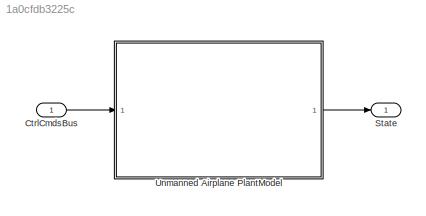
MODEL slx_1a0cfdb3225c
KIND model
BLOCK [Inport] CtrlCmdsBus
  OutDataTypeStr = Bus: ctrlCmdsBus
  SampleTime = [0.01,0]
BLOCK [Outport] State
  BusOutputAsStruct = on
  OutDataTypeStr = Bus: FixedWingStateBus
  VectorParamsAs1DForOutWhenUnconnected = off
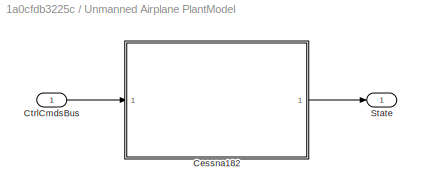
BLOCK [SubSystem] Unmanned Airplane PlantModel
  Ports = [1, 1]
  RequestExecContextInheritance = off
  TreatAsAtomicUnit = on
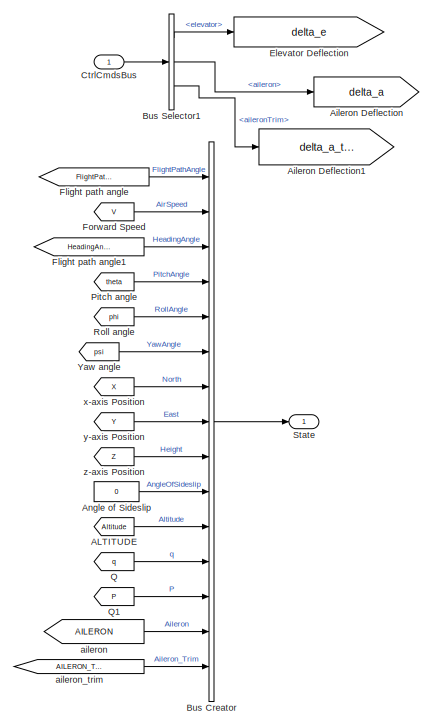
[diagram: Unmanned Airplane PlantModel/Cessna182 - part 1/2, left side, full height]
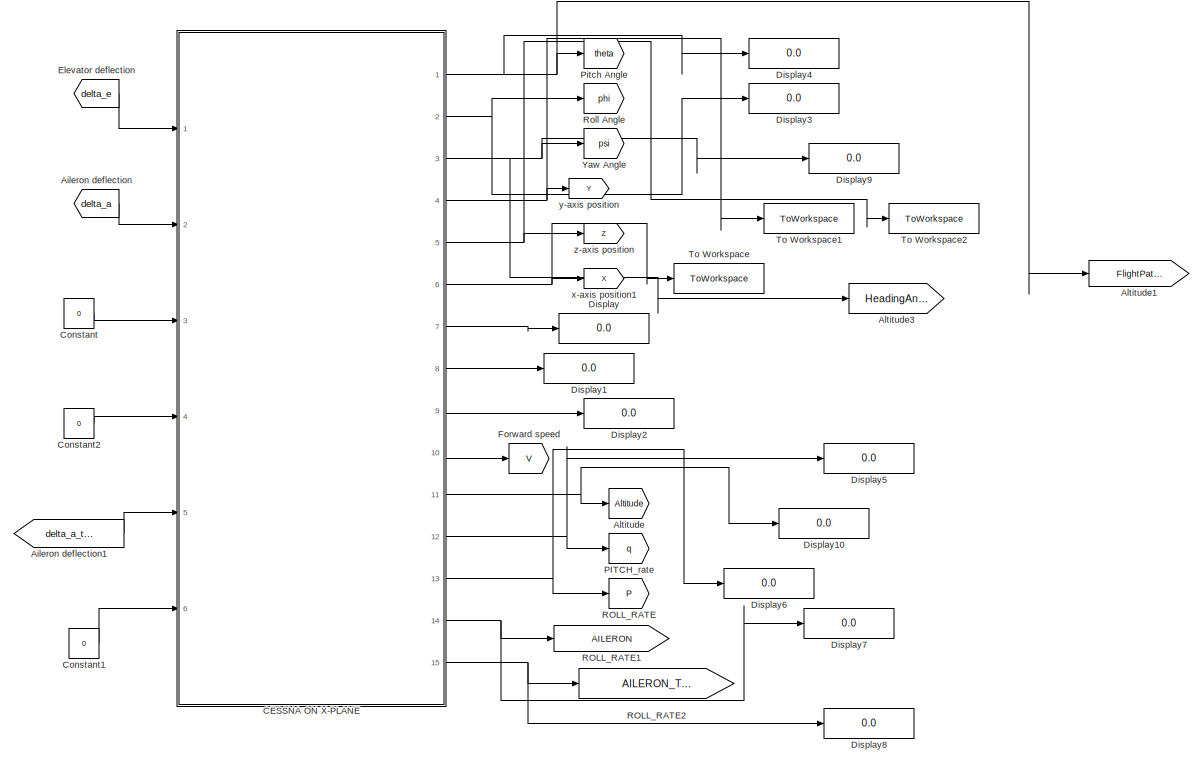
[diagram: Unmanned Airplane PlantModel/Cessna182 - part 2/2, center side, full height]
BLOCK [SubSystem] Unmanned Airplane PlantModel/Cessna182
  Ports = [1, 1]
  RequestExecContextInheritance = off
BLOCK [From] Unmanned Airplane PlantModel/Cessna182/ALTITUDE
  GotoTag = Altitude
BLOCK [Goto] Unmanned Airplane PlantModel/Cessna182/Aileron Deflection
  GotoTag = delta_a
BLOCK [Goto] Unmanned Airplane PlantModel/Cessna182/Aileron Deflection1
  GotoTag = delta_a_trim
BLOCK [From] Unmanned Airplane PlantModel/Cessna182/Aileron deflection
  GotoTag = delta_a
BLOCK [From] Unmanned Airplane PlantModel/Cessna182/Aileron deflection1
  GotoTag = delta_a_trim
BLOCK [Goto] Unmanned Airplane PlantModel/Cessna182/Altitude
  GotoTag = Altitude
BLOCK [Goto] Unmanned Airplane PlantModel/Cessna182/Altitude1
  GotoTag = FlightPathAngle
BLOCK [Goto] Unmanned Airplane PlantModel/Cessna182/Altitude3
  GotoTag = HeadingAngle
BLOCK [Constant] Unmanned Airplane PlantModel/Cessna182/Angle of Sideslip
  Value = 0
BLOCK [BusCreator] Unmanned Airplane PlantModel/Cessna182/Bus Creator
  DisplayOption = bar
  InheritFromInputs = on
  Inputs = 15
  OutDataTypeStr = Bus: FixedWingStateBus
  Ports = [15, 1]
BLOCK [BusSelector] Unmanned Airplane PlantModel/Cessna182/Bus Selector1
  OutputSignals = elevator,aileron,aileronTrim
  Ports = [1, 3]
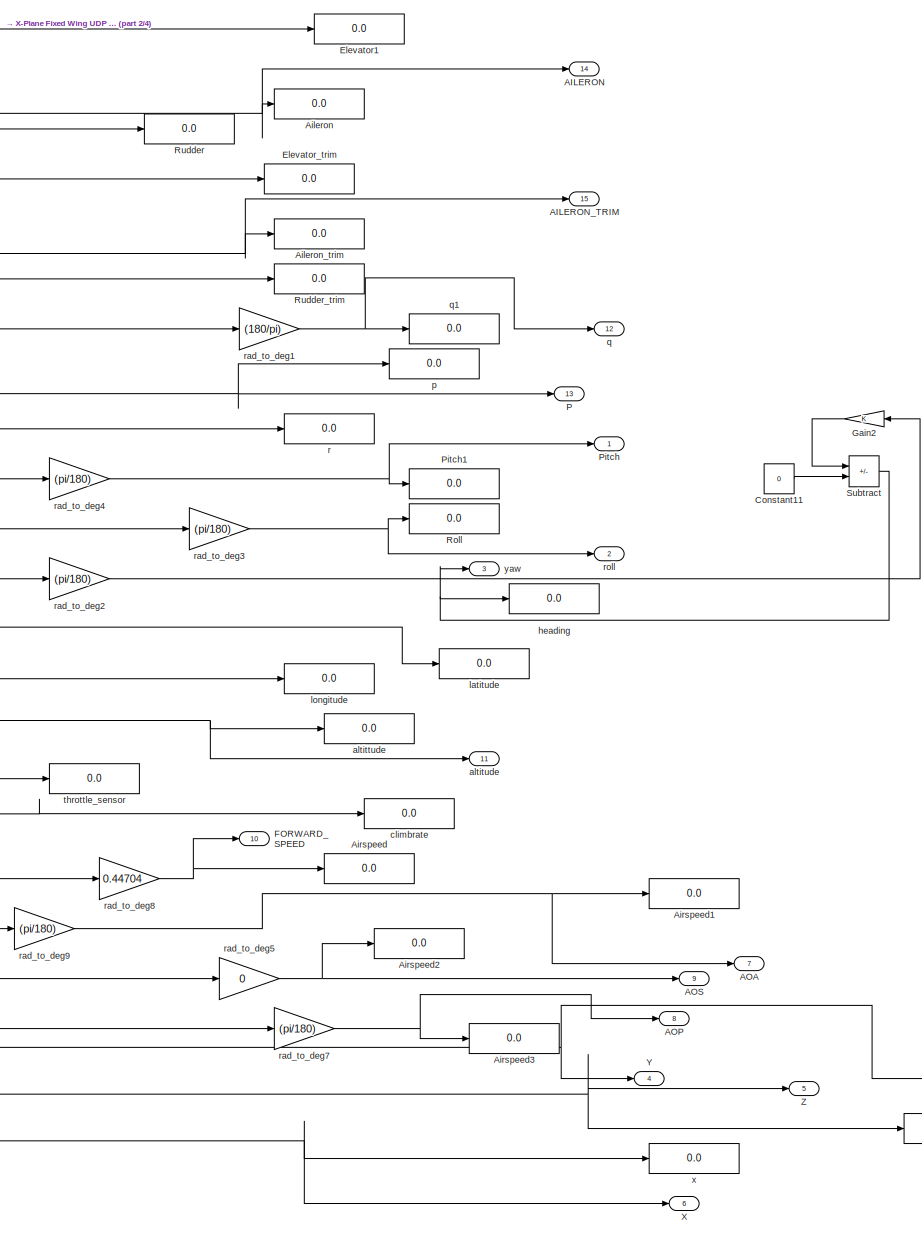
[diagram: Unmanned Airplane PlantModel/Cessna182/CESSNA ON X-PLANE - part 1/4, right side, full height]
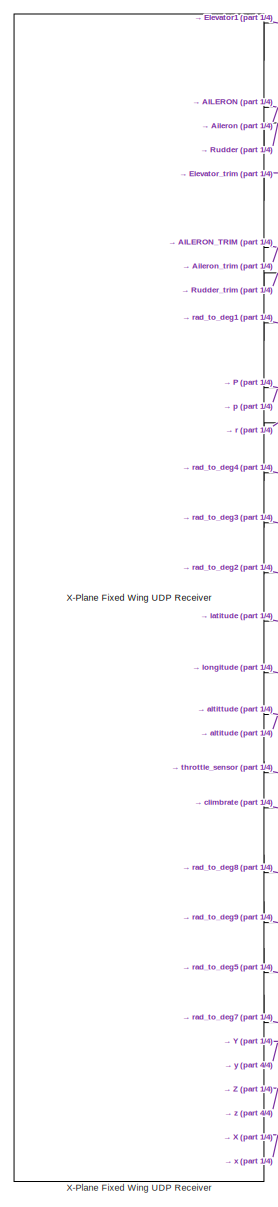
[diagram: Unmanned Airplane PlantModel/Cessna182/CESSNA ON X-PLANE - part 2/4, left side, full height]
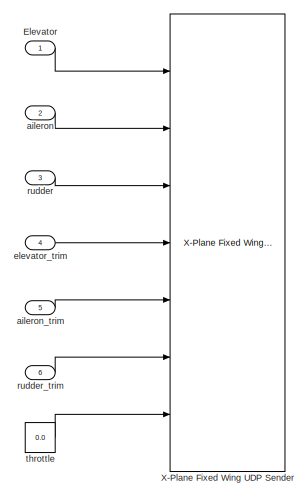
[diagram: Unmanned Airplane PlantModel/Cessna182/CESSNA ON X-PLANE - part 3/4, middle left region]
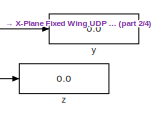
[diagram: Unmanned Airplane PlantModel/Cessna182/CESSNA ON X-PLANE - part 4/4, bottom right region]
BLOCK [SubSystem] Unmanned Airplane PlantModel/Cessna182/CESSNA ON X-PLANE
  Ports = [6, 15]
  RequestExecContextInheritance = off
BLOCK [Outport] Unmanned Airplane PlantModel/Cessna182/CESSNA ON X-PLANE/AILERON
  Port = 14
BLOCK [Outport] Unmanned Airplane PlantModel/Cessna182/CESSNA ON X-PLANE/AILERON_TRIM
  Port = 15
BLOCK [Outport] Unmanned Airplane PlantModel/Cessna182/CESSNA ON X-PLANE/AOA
  Port = 7
BLOCK [Outport] Unmanned Airplane PlantModel/Cessna182/CESSNA ON X-PLANE/AOP
  Port = 8
BLOCK [Outport] Unmanned Airplane PlantModel/Cessna182/CESSNA ON X-PLANE/AOS
  Port = 9
BLOCK [Display] Unmanned Airplane PlantModel/Cessna182/CESSNA ON X-PLANE/Aileron
  Decimation = 1
  NameLocation = top
  Ports = [1]
BLOCK [Display] Unmanned Airplane PlantModel/Cessna182/CESSNA ON X-PLANE/Aileron_trim
  Decimation = 1
  NameLocation = top
  Ports = [1]
BLOCK [Display] Unmanned Airplane PlantModel/Cessna182/CESSNA ON X-PLANE/Airspeed
  Decimation = 1
  NameLocation = top
  Ports = [1]
BLOCK [Display] Unmanned Airplane PlantModel/Cessna182/CESSNA ON X-PLANE/Airspeed1
  Decimation = 1
  NameLocation = top
  Ports = [1]
BLOCK [Display] Unmanned Airplane PlantModel/Cessna182/CESSNA ON X-PLANE/Airspeed2
  Decimation = 1
  NameLocation = top
  Ports = [1]
BLOCK [Display] Unmanned Airplane PlantModel/Cessna182/CESSNA ON X-PLANE/Airspeed3
  Decimation = 1
  NameLocation = top
  Ports = [1]
BLOCK [Constant] Unmanned Airplane PlantModel/Cessna182/CESSNA ON X-PLANE/Constant11
  Value = 0
BLOCK [Inport] Unmanned Airplane PlantModel/Cessna182/CESSNA ON X-PLANE/Elevator
BLOCK [Display] Unmanned Airplane PlantModel/Cessna182/CESSNA ON X-PLANE/Elevator1
  Decimation = 1
  NameLocation = top
  Ports = [1]
BLOCK [Display] Unmanned Airplane PlantModel/Cessna182/CESSNA ON X-PLANE/Elevator_trim
  Decimation = 1
  NameLocation = top
  Ports = [1]
BLOCK [Outport] Unmanned Airplane PlantModel/Cessna182/CESSNA ON X-PLANE/FORWARD_SPEED
  Port = 10
BLOCK [Gain] Unmanned Airplane PlantModel/Cessna182/CESSNA ON X-PLANE/Gain2
BLOCK [Outport] Unmanned Airplane PlantModel/Cessna182/CESSNA ON X-PLANE/P
  Port = 13
BLOCK [Outport] Unmanned Airplane PlantModel/Cessna182/CESSNA ON X-PLANE/Pitch
BLOCK [Display] Unmanned Airplane PlantModel/Cessna182/CESSNA ON X-PLANE/Pitch1
  Decimation = 1
  NameLocation = top
  Ports = [1]
BLOCK [Display] Unmanned Airplane PlantModel/Cessna182/CESSNA ON X-PLANE/Roll
  Decimation = 1
  NameLocation = top
  Ports = [1]
BLOCK [Display] Unmanned Airplane PlantModel/Cessna182/CESSNA ON X-PLANE/Rudder
  Decimation = 1
  NameLocation = top
  Ports = [1]
BLOCK [Display] Unmanned Airplane PlantModel/Cessna182/CESSNA ON X-PLANE/Rudder_trim
  Decimation = 1
  NameLocation = top
  Ports = [1]
BLOCK [Sum] Unmanned Airplane PlantModel/Cessna182/CESSNA ON X-PLANE/Subtract
  IconShape = rectangular
  Inputs = +-
  Ports = [2, 1]
BLOCK [Outport] Unmanned Airplane PlantModel/Cessna182/CESSNA ON X-PLANE/X
  Port = 6
BLOCK [Reference] Unmanned Airplane PlantModel/Cessna182/CESSNA ON X-PLANE/X-Plane Fixed Wing UDP Receiver  REF=receiver_sender/Fixed Wing/X-Plane Fixed Wing UDP Receiver  (lib defined in slx_af60ea2cd832)
  Ports = [0, 24]
  SourceBlock = receiver_sender/Fixed Wing/X-Plane Fixed Wing UDP Receiver
BLOCK [Reference] Unmanned Airplane PlantModel/Cessna182/CESSNA ON X-PLANE/X-Plane Fixed Wing UDP Sender  REF=receiver_sender/Fixed Wing/X-Plane Fixed Wing UDP Sender  (lib defined in slx_af60ea2cd832)
  Ports = [7]
  SourceBlock = receiver_sender/Fixed Wing/X-Plane Fixed Wing UDP Sender
BLOCK [Outport] Unmanned Airplane PlantModel/Cessna182/CESSNA ON X-PLANE/Y
  Port = 4
BLOCK [Outport] Unmanned Airplane PlantModel/Cessna182/CESSNA ON X-PLANE/Z
  Port = 5
BLOCK [Inport] Unmanned Airplane PlantModel/Cessna182/CESSNA ON X-PLANE/aileron
  Port = 2
BLOCK [Inport] Unmanned Airplane PlantModel/Cessna182/CESSNA ON X-PLANE/aileron_trim
  Port = 5
BLOCK [Display] Unmanned Airplane PlantModel/Cessna182/CESSNA ON X-PLANE/altittude
  Decimation = 1
  NameLocation = top
  Ports = [1]
BLOCK [Outport] Unmanned Airplane PlantModel/Cessna182/CESSNA ON X-PLANE/altitude
  Port = 11
BLOCK [Display] Unmanned Airplane PlantModel/Cessna182/CESSNA ON X-PLANE/climbrate
  Decimation = 1
  NameLocation = top
  Ports = [1]
BLOCK [Inport] Unmanned Airplane PlantModel/Cessna182/CESSNA ON X-PLANE/elevator_trim
  Port = 4
BLOCK [Display] Unmanned Airplane PlantModel/Cessna182/CESSNA ON X-PLANE/heading
  Decimation = 1
  NameLocation = top
  Ports = [1]
BLOCK [Display] Unmanned Airplane PlantModel/Cessna182/CESSNA ON X-PLANE/latitude
  Decimation = 1
  NameLocation = top
  Ports = [1]
BLOCK [Display] Unmanned Airplane PlantModel/Cessna182/CESSNA ON X-PLANE/longitude
  Decimation = 1
  NameLocation = top
  Ports = [1]
BLOCK [Display] Unmanned Airplane PlantModel/Cessna182/CESSNA ON X-PLANE/p
  Decimation = 1
  NameLocation = top
  Ports = [1]
BLOCK [Outport] Unmanned Airplane PlantModel/Cessna182/CESSNA ON X-PLANE/q
  Port = 12
BLOCK [Display] Unmanned Airplane PlantModel/Cessna182/CESSNA ON X-PLANE/q1
  Decimation = 1
  NameLocation = top
  Ports = [1]
BLOCK [Display] Unmanned Airplane PlantModel/Cessna182/CESSNA ON X-PLANE/r
  Decimation = 1
  NameLocation = top
  Ports = [1]
BLOCK [Gain] Unmanned Airplane PlantModel/Cessna182/CESSNA ON X-PLANE/rad_to_deg1
  Gain = (180/pi)
BLOCK [Gain] Unmanned Airplane PlantModel/Cessna182/CESSNA ON X-PLANE/rad_to_deg2
  Gain = (pi/180)
BLOCK [Gain] Unmanned Airplane PlantModel/Cessna182/CESSNA ON X-PLANE/rad_to_deg3
  Gain = (pi/180)
BLOCK [Gain] Unmanned Airplane PlantModel/Cessna182/CESSNA ON X-PLANE/rad_to_deg4
  Gain = (pi/180)
BLOCK [Gain] Unmanned Airplane PlantModel/Cessna182/CESSNA ON X-PLANE/rad_to_deg5
  Gain = 0
BLOCK [Gain] Unmanned Airplane PlantModel/Cessna182/CESSNA ON X-PLANE/rad_to_deg7
  Gain = (pi/180)
BLOCK [Gain] Unmanned Airplane PlantModel/Cessna182/CESSNA ON X-PLANE/rad_to_deg8
  Gain = 0.44704
BLOCK [Gain] Unmanned Airplane PlantModel/Cessna182/CESSNA ON X-PLANE/rad_to_deg9
  Gain = (pi/180)
BLOCK [Outport] Unmanned Airplane PlantModel/Cessna182/CESSNA ON X-PLANE/roll
  Port = 2
BLOCK [Inport] Unmanned Airplane PlantModel/Cessna182/CESSNA ON X-PLANE/rudder
  Port = 3
BLOCK [Inport] Unmanned Airplane PlantModel/Cessna182/CESSNA ON X-PLANE/rudder_trim
  Port = 6
BLOCK [Constant] Unmanned Airplane PlantModel/Cessna182/CESSNA ON X-PLANE/throttle
  Value = 0.0
BLOCK [Display] Unmanned Airplane PlantModel/Cessna182/CESSNA ON X-PLANE/throttle_sensor
  Decimation = 1
  NameLocation = top
  Ports = [1]
BLOCK [Display] Unmanned Airplane PlantModel/Cessna182/CESSNA ON X-PLANE/x
  Decimation = 1
  Ports = [1]
BLOCK [Display] Unmanned Airplane PlantModel/Cessna182/CESSNA ON X-PLANE/y
  Decimation = 1
  Ports = [1]
BLOCK [Outport] Unmanned Airplane PlantModel/Cessna182/CESSNA ON X-PLANE/yaw
  Port = 3
BLOCK [Display] Unmanned Airplane PlantModel/Cessna182/CESSNA ON X-PLANE/z
  Decimation = 1
  Ports = [1]
BLOCK [Constant] Unmanned Airplane PlantModel/Cessna182/Constant
  Value = 0
BLOCK [Constant] Unmanned Airplane PlantModel/Cessna182/Constant1
  Value = 0
BLOCK [Constant] Unmanned Airplane PlantModel/Cessna182/Constant2
  Value = 0
BLOCK [Inport] Unmanned Airplane PlantModel/Cessna182/CtrlCmdsBus
  OutDataTypeStr = Bus: ctrlCmdsBus
BLOCK [Display] Unmanned Airplane PlantModel/Cessna182/Display
  Decimation = 1
  Ports = [1]
BLOCK [Display] Unmanned Airplane PlantModel/Cessna182/Display1
  Decimation = 1
  Ports = [1]
BLOCK [Display] Unmanned Airplane PlantModel/Cessna182/Display10
  Decimation = 1
  Ports = [1]
BLOCK [Display] Unmanned Airplane PlantModel/Cessna182/Display2
  Decimation = 1
  Ports = [1]
BLOCK [Display] Unmanned Airplane PlantModel/Cessna182/Display3
  Decimation = 1
  Ports = [1]
BLOCK [Display] Unmanned Airplane PlantModel/Cessna182/Display4
  Decimation = 1
  Ports = [1]
BLOCK [Display] Unmanned Airplane PlantModel/Cessna182/Display5
  Decimation = 1
  Ports = [1]
BLOCK [Display] Unmanned Airplane PlantModel/Cessna182/Display6
  Decimation = 1
  Ports = [1]
BLOCK [Display] Unmanned Airplane PlantModel/Cessna182/Display7
  Decimation = 1
  Ports = [1]
BLOCK [Display] Unmanned Airplane PlantModel/Cessna182/Display8
  Decimation = 1
  Ports = [1]
BLOCK [Display] Unmanned Airplane PlantModel/Cessna182/Display9
  Decimation = 1
  Ports = [1]
BLOCK [Goto] Unmanned Airplane PlantModel/Cessna182/Elevator Deflection
  GotoTag = delta_e
BLOCK [From] Unmanned Airplane PlantModel/Cessna182/Elevator deflection
  GotoTag = delta_e
BLOCK [From] Unmanned Airplane PlantModel/Cessna182/Flight path angle
  GotoTag = FlightPathAngle
BLOCK [From] Unmanned Airplane PlantModel/Cessna182/Flight path angle1
  GotoTag = HeadingAngle
BLOCK [From] Unmanned Airplane PlantModel/Cessna182/Forward Speed
  GotoTag = V
BLOCK [Goto] Unmanned Airplane PlantModel/Cessna182/Forward speed
  GotoTag = V
BLOCK [Goto] Unmanned Airplane PlantModel/Cessna182/PITCH_rate
  GotoTag = q
BLOCK [Goto] Unmanned Airplane PlantModel/Cessna182/Pitch Angle
  GotoTag = theta
BLOCK [From] Unmanned Airplane PlantModel/Cessna182/Pitch angle
  GotoTag = theta
BLOCK [From] Unmanned Airplane PlantModel/Cessna182/Q
  GotoTag = q
BLOCK [From] Unmanned Airplane PlantModel/Cessna182/Q1
  GotoTag = P
BLOCK [Goto] Unmanned Airplane PlantModel/Cessna182/ROLL_RATE
  GotoTag = P
BLOCK [Goto] Unmanned Airplane PlantModel/Cessna182/ROLL_RATE1
  GotoTag = AILERON
BLOCK [Goto] Unmanned Airplane PlantModel/Cessna182/ROLL_RATE2
  GotoTag = AILERON_TRIM
BLOCK [Goto] Unmanned Airplane PlantModel/Cessna182/Roll Angle
  GotoTag = phi
BLOCK [From] Unmanned Airplane PlantModel/Cessna182/Roll angle
  GotoTag = phi
BLOCK [Outport] Unmanned Airplane PlantModel/Cessna182/State
  OutDataTypeStr = Bus: FixedWingStateBus
  VectorParamsAs1DForOutWhenUnconnected = off
BLOCK [ToWorkspace] Unmanned Airplane PlantModel/Cessna182/To Workspace
  FixptAsFi = on
  MaxDataPoints = inf
  Ports = [1]
  SampleTime = -1
  SaveFormat = Timeseries
  VariableName = X
BLOCK [ToWorkspace] Unmanned Airplane PlantModel/Cessna182/To Workspace1
  FixptAsFi = on
  MaxDataPoints = inf
  Ports = [1]
  SampleTime = -1
  SaveFormat = Timeseries
  VariableName = Y
BLOCK [ToWorkspace] Unmanned Airplane PlantModel/Cessna182/To Workspace2
  FixptAsFi = on
  MaxDataPoints = inf
  Ports = [1]
  SampleTime = -1
  SaveFormat = Timeseries
  VariableName = Z
BLOCK [Goto] Unmanned Airplane PlantModel/Cessna182/Yaw Angle
  GotoTag = psi
BLOCK [From] Unmanned Airplane PlantModel/Cessna182/Yaw angle
  GotoTag = psi
BLOCK [From] Unmanned Airplane PlantModel/Cessna182/aileron
  GotoTag = AILERON
BLOCK [From] Unmanned Airplane PlantModel/Cessna182/aileron_trim
  GotoTag = AILERON_TRIM
BLOCK [From] Unmanned Airplane PlantModel/Cessna182/x-axis Position
  GotoTag = X
BLOCK [Goto] Unmanned Airplane PlantModel/Cessna182/x-axis position1
  GotoTag = X
BLOCK [From] Unmanned Airplane PlantModel/Cessna182/y-axis Position
  GotoTag = Y
BLOCK [Goto] Unmanned Airplane PlantModel/Cessna182/y-axis position
  GotoTag = Y
BLOCK [From] Unmanned Airplane PlantModel/Cessna182/z-axis Position
  GotoTag = Z
BLOCK [Goto] Unmanned Airplane PlantModel/Cessna182/z-axis position
  GotoTag = Z
BLOCK [Inport] Unmanned Airplane PlantModel/CtrlCmdsBus
BLOCK [Outport] Unmanned Airplane PlantModel/State
  VectorParamsAs1DForOutWhenUnconnected = off
LINE CtrlCmdsBus:1 -> Unmanned Airplane PlantModel:1
LINE Unmanned Airplane PlantModel/Cessna182/ALTITUDE:1 -> Unmanned Airplane PlantModel/Cessna182/Bus Creator:11
LINE Unmanned Airplane PlantModel/Cessna182/Aileron deflection1:1 -> Unmanned Airplane PlantModel/Cessna182/CESSNA ON X-PLANE:5
LINE Unmanned Airplane PlantModel/Cessna182/Aileron deflection:1 -> Unmanned Airplane PlantModel/Cessna182/CESSNA ON X-PLANE:2
LINE Unmanned Airplane PlantModel/Cessna182/Angle of Sideslip:1 -> Unmanned Airplane PlantModel/Cessna182/Bus Creator:10
LINE Unmanned Airplane PlantModel/Cessna182/Bus Creator:1 -> Unmanned Airplane PlantModel/Cessna182/State:1
LINE Unmanned Airplane PlantModel/Cessna182/Bus Selector1:1 -> Unmanned Airplane PlantModel/Cessna182/Elevator Deflection:1
LINE Unmanned Airplane PlantModel/Cessna182/Bus Selector1:2 -> Unmanned Airplane PlantModel/Cessna182/Aileron Deflection:1
LINE Unmanned Airplane PlantModel/Cessna182/Bus Selector1:3 -> Unmanned Airplane PlantModel/Cessna182/Aileron Deflection1:1
LINE Unmanned Airplane PlantModel/Cessna182/CESSNA ON X-PLANE/Constant11:1 -> Unmanned Airplane PlantModel/Cessna182/CESSNA ON X-PLANE/Subtract:2
LINE Unmanned Airplane PlantModel/Cessna182/CESSNA ON X-PLANE/Elevator:1 -> Unmanned Airplane PlantModel/Cessna182/CESSNA ON X-PLANE/X-Plane Fixed Wing UDP Sender:1
LINE Unmanned Airplane PlantModel/Cessna182/CESSNA ON X-PLANE/Gain2:1 -> Unmanned Airplane PlantModel/Cessna182/CESSNA ON X-PLANE/Subtract:1
NET Unmanned Airplane PlantModel/Cessna182/CESSNA ON X-PLANE/Subtract:1 -> Unmanned Airplane PlantModel/Cessna182/CESSNA ON X-PLANE/heading:1, Unmanned Airplane PlantModel/Cessna182/CESSNA ON X-PLANE/yaw:1
LINE Unmanned Airplane PlantModel/Cessna182/CESSNA ON X-PLANE/X-Plane Fixed Wing UDP Receiver:1 -> Unmanned Airplane PlantModel/Cessna182/CESSNA ON X-PLANE/Elevator1:1
LINE Unmanned Airplane PlantModel/Cessna182/CESSNA ON X-PLANE/X-Plane Fixed Wing UDP Receiver:10 -> Unmanned Airplane PlantModel/Cessna182/CESSNA ON X-PLANE/rad_to_deg4:1
LINE Unmanned Airplane PlantModel/Cessna182/CESSNA ON X-PLANE/X-Plane Fixed Wing UDP Receiver:11 -> Unmanned Airplane PlantModel/Cessna182/CESSNA ON X-PLANE/rad_to_deg3:1
LINE Unmanned Airplane PlantModel/Cessna182/CESSNA ON X-PLANE/X-Plane Fixed Wing UDP Receiver:12 -> Unmanned Airplane PlantModel/Cessna182/CESSNA ON X-PLANE/rad_to_deg2:1
LINE Unmanned Airplane PlantModel/Cessna182/CESSNA ON X-PLANE/X-Plane Fixed Wing UDP Receiver:13 -> Unmanned Airplane PlantModel/Cessna182/CESSNA ON X-PLANE/latitude:1
LINE Unmanned Airplane PlantModel/Cessna182/CESSNA ON X-PLANE/X-Plane Fixed Wing UDP Receiver:14 -> Unmanned Airplane PlantModel/Cessna182/CESSNA ON X-PLANE/longitude:1
NET Unmanned Airplane PlantModel/Cessna182/CESSNA ON X-PLANE/X-Plane Fixed Wing UDP Receiver:15 -> Unmanned Airplane PlantModel/Cessna182/CESSNA ON X-PLANE/altittude:1, Unmanned Airplane PlantModel/Cessna182/CESSNA ON X-PLANE/altitude:1
LINE Unmanned Airplane PlantModel/Cessna182/CESSNA ON X-PLANE/X-Plane Fixed Wing UDP Receiver:16 -> Unmanned Airplane PlantModel/Cessna182/CESSNA ON X-PLANE/throttle_sensor:1
LINE Unmanned Airplane PlantModel/Cessna182/CESSNA ON X-PLANE/X-Plane Fixed Wing UDP Receiver:17 -> Unmanned Airplane PlantModel/Cessna182/CESSNA ON X-PLANE/climbrate:1
LINE Unmanned Airplane PlantModel/Cessna182/CESSNA ON X-PLANE/X-Plane Fixed Wing UDP Receiver:18 -> Unmanned Airplane PlantModel/Cessna182/CESSNA ON X-PLANE/rad_to_deg8:1
LINE Unmanned Airplane PlantModel/Cessna182/CESSNA ON X-PLANE/X-Plane Fixed Wing UDP Receiver:19 -> Unmanned Airplane PlantModel/Cessna182/CESSNA ON X-PLANE/rad_to_deg9:1
NET Unmanned Airplane PlantModel/Cessna182/CESSNA ON X-PLANE/X-Plane Fixed Wing UDP Receiver:2 -> Unmanned Airplane PlantModel/Cessna182/CESSNA ON X-PLANE/AILERON:1, Unmanned Airplane PlantModel/Cessna182/CESSNA ON X-PLANE/Aileron:1
LINE Unmanned Airplane PlantModel/Cessna182/CESSNA ON X-PLANE/X-Plane Fixed Wing UDP Receiver:20 -> Unmanned Airplane PlantModel/Cessna182/CESSNA ON X-PLANE/rad_to_deg5:1
LINE Unmanned Airplane PlantModel/Cessna182/CESSNA ON X-PLANE/X-Plane Fixed Wing UDP Receiver:21 -> Unmanned Airplane PlantModel/Cessna182/CESSNA ON X-PLANE/rad_to_deg7:1
NET Unmanned Airplane PlantModel/Cessna182/CESSNA ON X-PLANE/X-Plane Fixed Wing UDP Receiver:22 -> Unmanned Airplane PlantModel/Cessna182/CESSNA ON X-PLANE/Y:1, Unmanned Airplane PlantModel/Cessna182/CESSNA ON X-PLANE/y:1
NET Unmanned Airplane PlantModel/Cessna182/CESSNA ON X-PLANE/X-Plane Fixed Wing UDP Receiver:23 -> Unmanned Airplane PlantModel/Cessna182/CESSNA ON X-PLANE/Z:1, Unmanned Airplane PlantModel/Cessna182/CESSNA ON X-PLANE/z:1
NET Unmanned Airplane PlantModel/Cessna182/CESSNA ON X-PLANE/X-Plane Fixed Wing UDP Receiver:24 -> Unmanned Airplane PlantModel/Cessna182/CESSNA ON X-PLANE/X:1, Unmanned Airplane PlantModel/Cessna182/CESSNA ON X-PLANE/x:1
LINE Unmanned Airplane PlantModel/Cessna182/CESSNA ON X-PLANE/X-Plane Fixed Wing UDP Receiver:3 -> Unmanned Airplane PlantModel/Cessna182/CESSNA ON X-PLANE/Rudder:1
LINE Unmanned Airplane PlantModel/Cessna182/CESSNA ON X-PLANE/X-Plane Fixed Wing UDP Receiver:4 -> Unmanned Airplane PlantModel/Cessna182/CESSNA ON X-PLANE/Elevator_trim:1
NET Unmanned Airplane PlantModel/Cessna182/CESSNA ON X-PLANE/X-Plane Fixed Wing UDP Receiver:5 -> Unmanned Airplane PlantModel/Cessna182/CESSNA ON X-PLANE/AILERON_TRIM:1, Unmanned Airplane PlantModel/Cessna182/CESSNA ON X-PLANE/Aileron_trim:1
LINE Unmanned Airplane PlantModel/Cessna182/CESSNA ON X-PLANE/X-Plane Fixed Wing UDP Receiver:6 -> Unmanned Airplane PlantModel/Cessna182/CESSNA ON X-PLANE/Rudder_trim:1
LINE Unmanned Airplane PlantModel/Cessna182/CESSNA ON X-PLANE/X-Plane Fixed Wing UDP Receiver:7 -> Unmanned Airplane PlantModel/Cessna182/CESSNA ON X-PLANE/rad_to_deg1:1
NET Unmanned Airplane PlantModel/Cessna182/CESSNA ON X-PLANE/X-Plane Fixed Wing UDP Receiver:8 -> Unmanned Airplane PlantModel/Cessna182/CESSNA ON X-PLANE/P:1, Unmanned Airplane PlantModel/Cessna182/CESSNA ON X-PLANE/p:1
LINE Unmanned Airplane PlantModel/Cessna182/CESSNA ON X-PLANE/X-Plane Fixed Wing UDP Receiver:9 -> Unmanned Airplane PlantModel/Cessna182/CESSNA ON X-PLANE/r:1
LINE Unmanned Airplane PlantModel/Cessna182/CESSNA ON X-PLANE/aileron:1 -> Unmanned Airplane PlantModel/Cessna182/CESSNA ON X-PLANE/X-Plane Fixed Wing UDP Sender:2
LINE Unmanned Airplane PlantModel/Cessna182/CESSNA ON X-PLANE/aileron_trim:1 -> Unmanned Airplane PlantModel/Cessna182/CESSNA ON X-PLANE/X-Plane Fixed Wing UDP Sender:5
LINE Unmanned Airplane PlantModel/Cessna182/CESSNA ON X-PLANE/elevator_trim:1 -> Unmanned Airplane PlantModel/Cessna182/CESSNA ON X-PLANE/X-Plane Fixed Wing UDP Sender:4
NET Unmanned Airplane PlantModel/Cessna182/CESSNA ON X-PLANE/rad_to_deg1:1 -> Unmanned Airplane PlantModel/Cessna182/CESSNA ON X-PLANE/q1:1, Unmanned Airplane PlantModel/Cessna182/CESSNA ON X-PLANE/q:1
LINE Unmanned Airplane PlantModel/Cessna182/CESSNA ON X-PLANE/rad_to_deg2:1 -> Unmanned Airplane PlantModel/Cessna182/CESSNA ON X-PLANE/Gain2:1
NET Unmanned Airplane PlantModel/Cessna182/CESSNA ON X-PLANE/rad_to_deg3:1 -> Unmanned Airplane PlantModel/Cessna182/CESSNA ON X-PLANE/Roll:1, Unmanned Airplane PlantModel/Cessna182/CESSNA ON X-PLANE/roll:1
NET Unmanned Airplane PlantModel/Cessna182/CESSNA ON X-PLANE/rad_to_deg4:1 -> Unmanned Airplane PlantModel/Cessna182/CESSNA ON X-PLANE/Pitch1:1, Unmanned Airplane PlantModel/Cessna182/CESSNA ON X-PLANE/Pitch:1
NET Unmanned Airplane PlantModel/Cessna182/CESSNA ON X-PLANE/rad_to_deg5:1 -> Unmanned Airplane PlantModel/Cessna182/CESSNA ON X-PLANE/AOS:1, Unmanned Airplane PlantModel/Cessna182/CESSNA ON X-PLANE/Airspeed2:1
NET Unmanned Airplane PlantModel/Cessna182/CESSNA ON X-PLANE/rad_to_deg7:1 -> Unmanned Airplane PlantModel/Cessna182/CESSNA ON X-PLANE/AOP:1, Unmanned Airplane PlantModel/Cessna182/CESSNA ON X-PLANE/Airspeed3:1
NET Unmanned Airplane PlantModel/Cessna182/CESSNA ON X-PLANE/rad_to_deg8:1 -> Unmanned Airplane PlantModel/Cessna182/CESSNA ON X-PLANE/Airspeed:1, Unmanned Airplane PlantModel/Cessna182/CESSNA ON X-PLANE/FORWARD_SPEED:1
NET Unmanned Airplane PlantModel/Cessna182/CESSNA ON X-PLANE/rad_to_deg9:1 -> Unmanned Airplane PlantModel/Cessna182/CESSNA ON X-PLANE/AOA:1, Unmanned Airplane PlantModel/Cessna182/CESSNA ON X-PLANE/Airspeed1:1
LINE Unmanned Airplane PlantModel/Cessna182/CESSNA ON X-PLANE/rudder:1 -> Unmanned Airplane PlantModel/Cessna182/CESSNA ON X-PLANE/X-Plane Fixed Wing UDP Sender:3
LINE Unmanned Airplane PlantModel/Cessna182/CESSNA ON X-PLANE/rudder_trim:1 -> Unmanned Airplane PlantModel/Cessna182/CESSNA ON X-PLANE/X-Plane Fixed Wing UDP Sender:6
LINE Unmanned Airplane PlantModel/Cessna182/CESSNA ON X-PLANE/throttle:1 -> Unmanned Airplane PlantModel/Cessna182/CESSNA ON X-PLANE/X-Plane Fixed Wing UDP Sender:7
NET Unmanned Airplane PlantModel/Cessna182/CESSNA ON X-PLANE:1 -> Unmanned Airplane PlantModel/Cessna182/Altitude1:1, Unmanned Airplane PlantModel/Cessna182/Display4:1, Unmanned Airplane PlantModel/Cessna182/Pitch Angle:1
LINE Unmanned Airplane PlantModel/Cessna182/CESSNA ON X-PLANE:10 -> Unmanned Airplane PlantModel/Cessna182/Forward speed:1
NET Unmanned Airplane PlantModel/Cessna182/CESSNA ON X-PLANE:11 -> Unmanned Airplane PlantModel/Cessna182/Altitude:1, Unmanned Airplane PlantModel/Cessna182/Display10:1
NET Unmanned Airplane PlantModel/Cessna182/CESSNA ON X-PLANE:12 -> Unmanned Airplane PlantModel/Cessna182/Display5:1, Unmanned Airplane PlantModel/Cessna182/PITCH_rate:1
NET Unmanned Airplane PlantModel/Cessna182/CESSNA ON X-PLANE:13 -> Unmanned Airplane PlantModel/Cessna182/Display6:1, Unmanned Airplane PlantModel/Cessna182/ROLL_RATE:1
NET Unmanned Airplane PlantModel/Cessna182/CESSNA ON X-PLANE:14 -> Unmanned Airplane PlantModel/Cessna182/Display7:1, Unmanned Airplane PlantModel/Cessna182/ROLL_RATE1:1
NET Unmanned Airplane PlantModel/Cessna182/CESSNA ON X-PLANE:15 -> Unmanned Airplane PlantModel/Cessna182/Display8:1, Unmanned Airplane PlantModel/Cessna182/ROLL_RATE2:1
NET Unmanned Airplane PlantModel/Cessna182/CESSNA ON X-PLANE:2 -> Unmanned Airplane PlantModel/Cessna182/Display3:1, Unmanned Airplane PlantModel/Cessna182/Roll Angle:1
NET Unmanned Airplane PlantModel/Cessna182/CESSNA ON X-PLANE:3 -> Unmanned Airplane PlantModel/Cessna182/Altitude3:1, Unmanned Airplane PlantModel/Cessna182/Display9:1, Unmanned Airplane PlantModel/Cessna182/Yaw Angle:1
NET Unmanned Airplane PlantModel/Cessna182/CESSNA ON X-PLANE:4 -> Unmanned Airplane PlantModel/Cessna182/To Workspace1:1, Unmanned Airplane PlantModel/Cessna182/y-axis position:1
NET Unmanned Airplane PlantModel/Cessna182/CESSNA ON X-PLANE:5 -> Unmanned Airplane PlantModel/Cessna182/To Workspace2:1, Unmanned Airplane PlantModel/Cessna182/z-axis position:1
NET Unmanned Airplane PlantModel/Cessna182/CESSNA ON X-PLANE:6 -> Unmanned Airplane PlantModel/Cessna182/To Workspace:1, Unmanned Airplane PlantModel/Cessna182/x-axis position1:1
LINE Unmanned Airplane PlantModel/Cessna182/CESSNA ON X-PLANE:7 -> Unmanned Airplane PlantModel/Cessna182/Display:1
LINE Unmanned Airplane PlantModel/Cessna182/CESSNA ON X-PLANE:8 -> Unmanned Airplane PlantModel/Cessna182/Display1:1
LINE Unmanned Airplane PlantModel/Cessna182/CESSNA ON X-PLANE:9 -> Unmanned Airplane PlantModel/Cessna182/Display2:1
LINE Unmanned Airplane PlantModel/Cessna182/Constant1:1 -> Unmanned Airplane PlantModel/Cessna182/CESSNA ON X-PLANE:6
LINE Unmanned Airplane PlantModel/Cessna182/Constant2:1 -> Unmanned Airplane PlantModel/Cessna182/CESSNA ON X-PLANE:4
LINE Unmanned Airplane PlantModel/Cessna182/Constant:1 -> Unmanned Airplane PlantModel/Cessna182/CESSNA ON X-PLANE:3
LINE Unmanned Airplane PlantModel/Cessna182/CtrlCmdsBus:1 -> Unmanned Airplane PlantModel/Cessna182/Bus Selector1:1
LINE Unmanned Airplane PlantModel/Cessna182/Elevator deflection:1 -> Unmanned Airplane PlantModel/Cessna182/CESSNA ON X-PLANE:1
LINE Unmanned Airplane PlantModel/Cessna182/Flight path angle1:1 -> Unmanned Airplane PlantModel/Cessna182/Bus Creator:3
LINE Unmanned Airplane PlantModel/Cessna182/Flight path angle:1 -> Unmanned Airplane PlantModel/Cessna182/Bus Creator:1
LINE Unmanned Airplane PlantModel/Cessna182/Forward Speed:1 -> Unmanned Airplane PlantModel/Cessna182/Bus Creator:2
LINE Unmanned Airplane PlantModel/Cessna182/Pitch angle:1 -> Unmanned Airplane PlantModel/Cessna182/Bus Creator:4
LINE Unmanned Airplane PlantModel/Cessna182/Q1:1 -> Unmanned Airplane PlantModel/Cessna182/Bus Creator:13
LINE Unmanned Airplane PlantModel/Cessna182/Q:1 -> Unmanned Airplane PlantModel/Cessna182/Bus Creator:12
LINE Unmanned Airplane PlantModel/Cessna182/Roll angle:1 -> Unmanned Airplane PlantModel/Cessna182/Bus Creator:5
LINE Unmanned Airplane PlantModel/Cessna182/Yaw angle:1 -> Unmanned Airplane PlantModel/Cessna182/Bus Creator:6
LINE Unmanned Airplane PlantModel/Cessna182/aileron:1 -> Unmanned Airplane PlantModel/Cessna182/Bus Creator:14
LINE Unmanned Airplane PlantModel/Cessna182/aileron_trim:1 -> Unmanned Airplane PlantModel/Cessna182/Bus Creator:15
LINE Unmanned Airplane PlantModel/Cessna182/x-axis Position:1 -> Unmanned Airplane PlantModel/Cessna182/Bus Creator:7
LINE Unmanned Airplane PlantModel/Cessna182/y-axis Position:1 -> Unmanned Airplane PlantModel/Cessna182/Bus Creator:8
LINE Unmanned Airplane PlantModel/Cessna182/z-axis Position:1 -> Unmanned Airplane PlantModel/Cessna182/Bus Creator:9
LINE Unmanned Airplane PlantModel/Cessna182:1 -> Unmanned Airplane PlantModel/State:1
LINE Unmanned Airplane PlantModel/CtrlCmdsBus:1 -> Unmanned Airplane PlantModel/Cessna182:1
LINE Unmanned Airplane PlantModel:1 -> State:1
note: NET lines group one-source signal fan-out (src -> all destinations, sorted); 1:1 wires keep LINE
